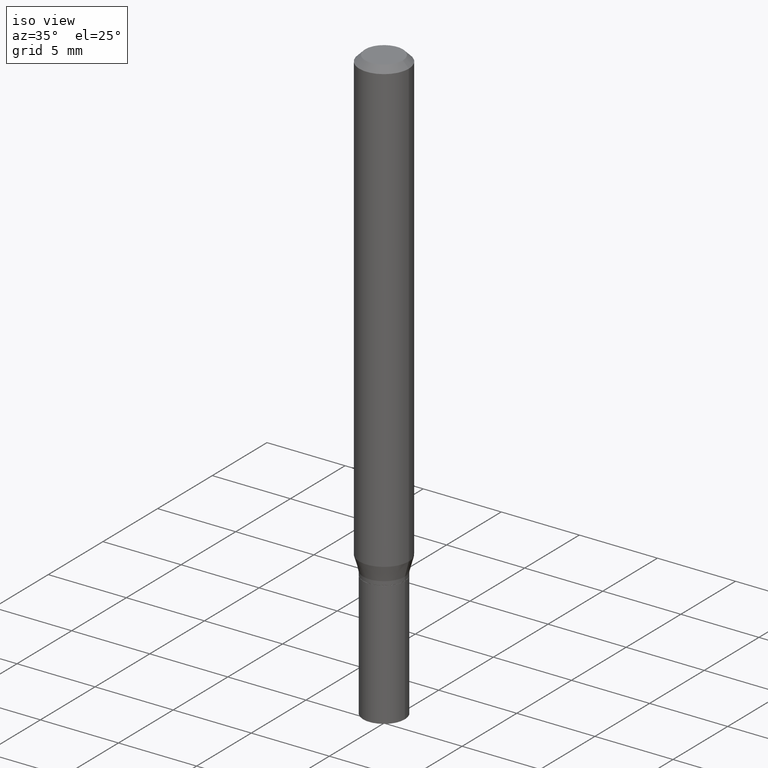
[diagram: clean part render]
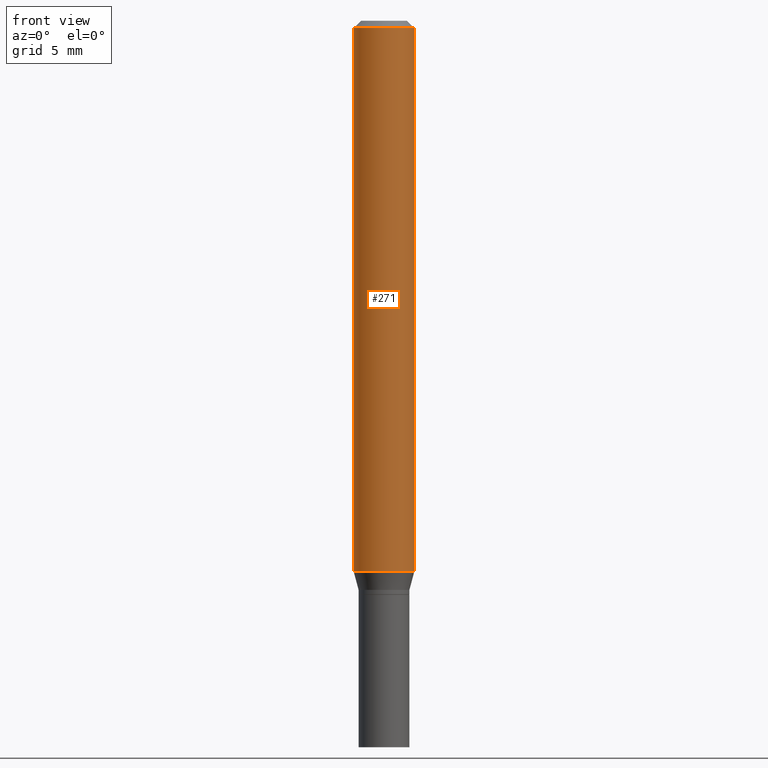
[diagram: tour spotlight — one face highlighted and labeled with its STEP entity id]
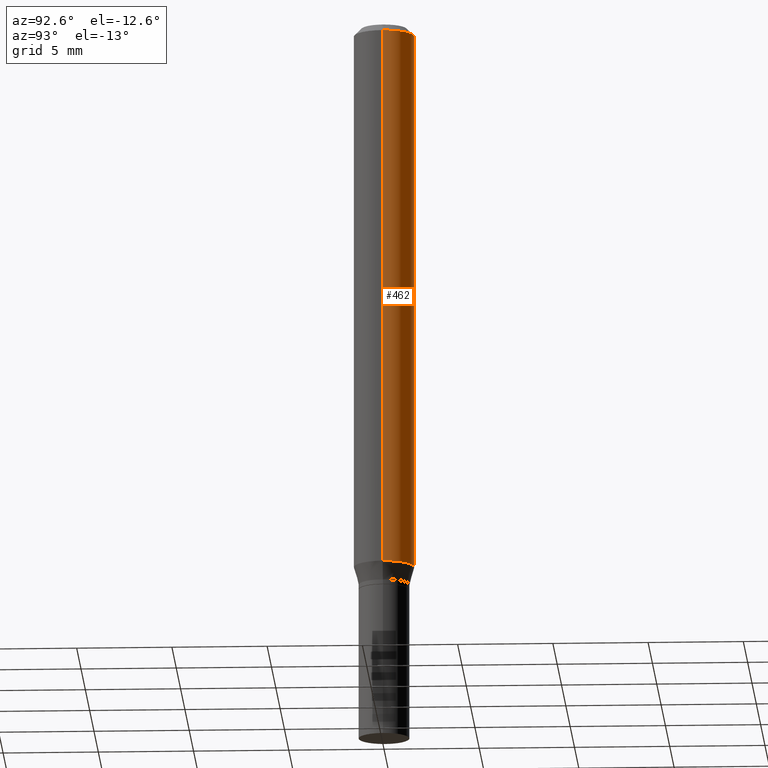
[diagram: tour spotlight — one face highlighted and labeled with its STEP entity id]
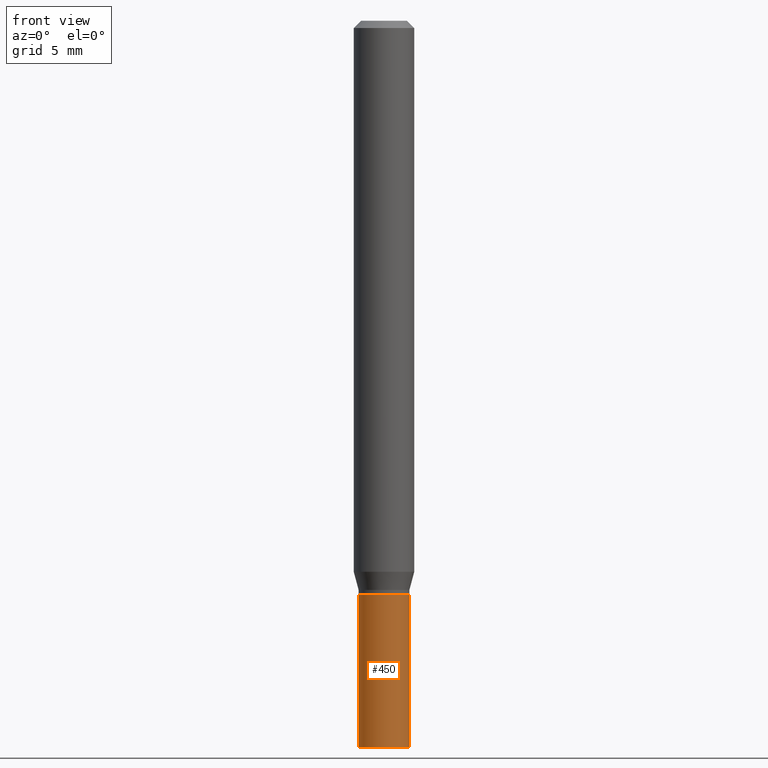
[diagram: tour spotlight — one face highlighted and labeled with its STEP entity id]
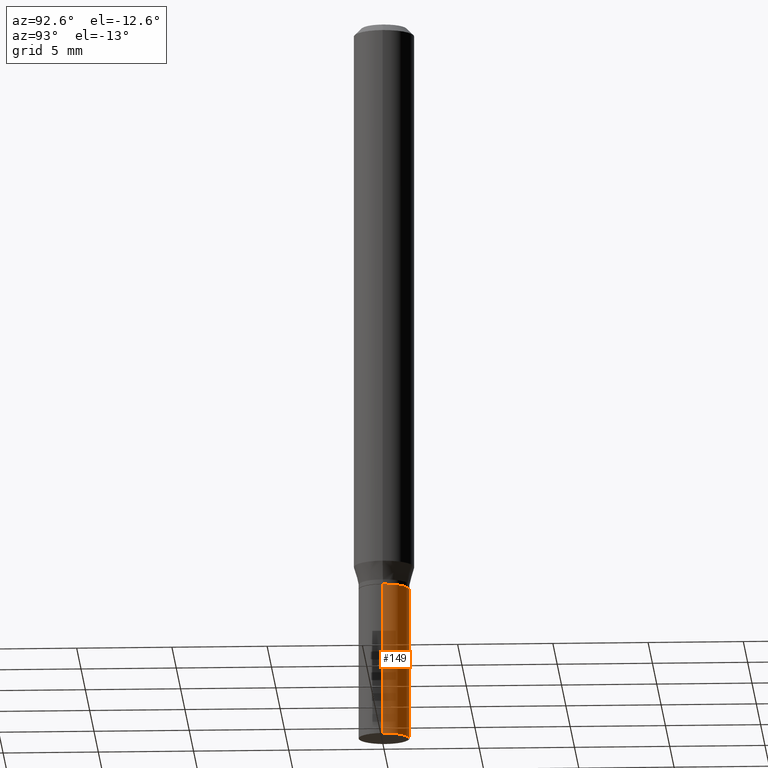
[diagram: tour spotlight — one face highlighted and labeled with its STEP entity id]
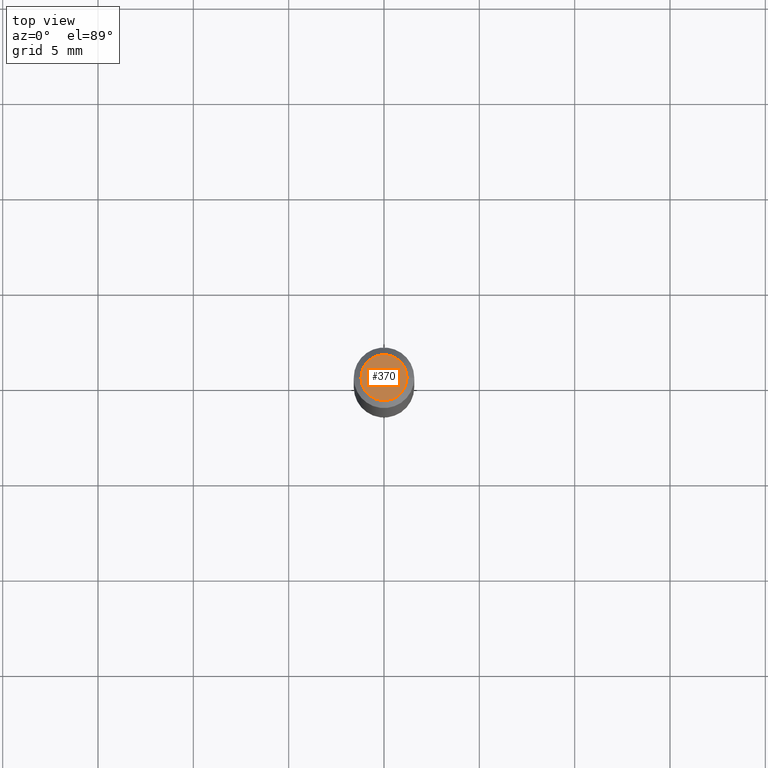
[diagram: tour spotlight — one face highlighted and labeled with its STEP entity id]
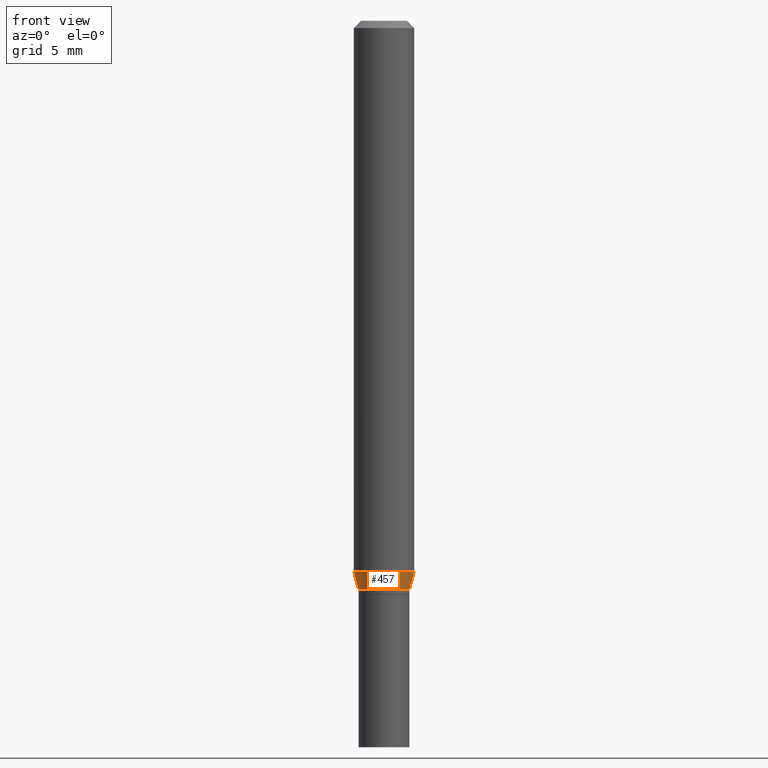
[diagram: tour spotlight — one face highlighted and labeled with its STEP entity id]
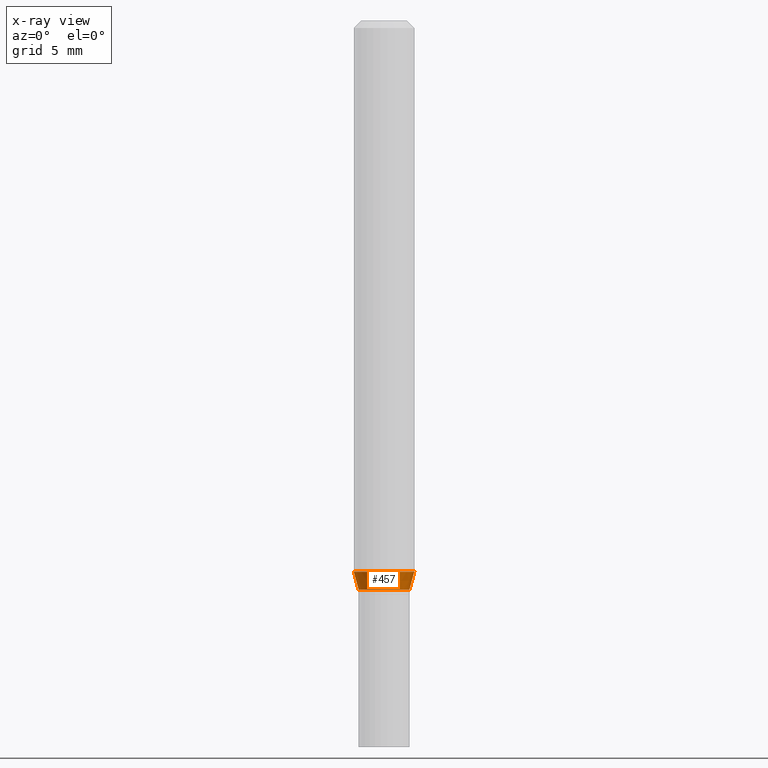
[diagram: x-ray of the same camera — body ghosted, this tour face saturated]
A machine part: a face-by-face anatomy tour. The part has 16 B-rep faces; the first image is the clean iso view, then the 6 largest visible faces are spotlighted one at a time (largest first), each with its STEP entity span.

Face 1 — front view, entity #271. In plain terms, the highlighted cylindrical surface (edge-blend (fillet) strip) has radius 1.5875 mm, axis along (-0, 0, 1).
Definition (entity closure, byte-faithful):
#20 = DIRECTION ( 'NONE',  ( -2.445468806185136877E-29, 3.491481338843145188E-15, 1.000000000000000000 ) ) ;
#22 = DIRECTION ( 'NONE',  ( 1.000000000000000000, -6.982962677686266711E-15, 0.000000000000000000 ) ) ;
#23 = ORIENTED_EDGE ( 'NONE', *, *, #77, .F. ) ;
#54 = CARTESIAN_POINT ( 'NONE',  ( -0.06250000000000000000, -1.568190258010403558E-15, -0.01499999999999999944 ) ) ;
#55 = DIRECTION ( 'NONE',  ( -2.445468806185136877E-29, 3.491481338843145188E-15, 1.000000000000000000 ) ) ;
#61 = LINE ( 'NONE', #339, #341 ) ;
#77 = EDGE_CURVE ( 'NONE', #247, #340, #435, .T. ) ;
#95 = DIRECTION ( 'NONE',  ( 1.000000000000000000, -6.982962677686270655E-15, 0.000000000000000000 ) ) ;
#106 = CARTESIAN_POINT ( 'NONE',  ( 0.06250000000000000000, -4.408621882993677332E-15, -1.137679491924311614 ) ) ;
#118 = CARTESIAN_POINT ( 'NONE',  ( 0.06250000000000000000, -4.364351673553916694E-16, 3.047610484872459871E-30 ) ) ;
#138 = VERTEX_POINT ( 'NONE', #106 ) ;
#144 = CARTESIAN_POINT ( 'NONE',  ( 3.668203209277705088E-31, -5.237222008264718399E-17, -0.01499999999999999944 ) ) ;
#150 = FACE_OUTER_BOUND ( 'NONE', #263, .T. ) ;
#172 = CARTESIAN_POINT ( 'NONE',  ( -0.06250000000000000000, -3.528097505788222652E-15, -1.137679491924311614 ) ) ;
#178 = EDGE_CURVE ( 'NONE', #138, #340, #189, .T. ) ;
#189 = LINE ( 'NONE', #118, #395 ) ;
#195 = ORIENTED_EDGE ( 'NONE', *, *, #413, .F. ) ;
#219 = VERTEX_POINT ( 'NONE', #172 ) ;
#247 = VERTEX_POINT ( 'NONE', #54 ) ;
#248 = ORIENTED_EDGE ( 'NONE', *, *, #178, .T. ) ;
#263 = EDGE_LOOP ( 'NONE', ( #195, #394, #248, #23 ) ) ;
#270 = AXIS2_PLACEMENT_3D ( 'NONE', #144, #294, #22 ) ;
#271 = ADVANCED_FACE ( 'NONE', ( #150 ), #447, .T. ) ;
#272 = AXIS2_PLACEMENT_3D ( 'NONE', #304, #439, #403 ) ;
#294 = DIRECTION ( 'NONE',  ( -2.445468806185136597E-29, 3.491481338843145583E-15, 1.000000000000000000 ) ) ;
#304 = CARTESIAN_POINT ( 'NONE',  ( 0.000000000000000000, 0.000000000000000000, 0.000000000000000000 ) ) ;
#317 = CARTESIAN_POINT ( 'NONE',  ( 2.782159708937459233E-29, -3.972186715638284874E-15, -1.137679491924311614 ) ) ;
#339 = CARTESIAN_POINT ( 'NONE',  ( -0.06250000000000000000, 4.440892098500626162E-16, -3.074334431409316114E-30 ) ) ;
#340 = VERTEX_POINT ( 'NONE', #409 ) ;
#341 = VECTOR ( 'NONE', #20, 39.37007874015748143 ) ;
#355 = AXIS2_PLACEMENT_3D ( 'NONE', #317, #383, #95 ) ;
#379 = CIRCLE ( 'NONE', #355, 0.06250000000000000000 ) ;
#383 = DIRECTION ( 'NONE',  ( -2.445468806185136597E-29, 3.491481338843145583E-15, 1.000000000000000000 ) ) ;
#394 = ORIENTED_EDGE ( 'NONE', *, *, #424, .T. ) ;
#395 = VECTOR ( 'NONE', #55, 39.37007874015748143 ) ;
#403 = DIRECTION ( 'NONE',  ( 1.000000000000000000, -6.982962677686266711E-15, 4.876176775795935793E-29 ) ) ;
#409 = CARTESIAN_POINT ( 'NONE',  ( 0.06250000000000000000, -4.888073874380388472E-16, -0.01499999999999999944 ) ) ;
#413 = EDGE_CURVE ( 'NONE', #219, #247, #61, .T. ) ;
#424 = EDGE_CURVE ( 'NONE', #219, #138, #379, .T. ) ;
#435 = CIRCLE ( 'NONE', #270, 0.06250000000000000000 ) ;
#439 = DIRECTION ( 'NONE',  ( -2.445468806185136597E-29, 3.491481338843145583E-15, 1.000000000000000000 ) ) ;
#447 = CYLINDRICAL_SURFACE ( 'NONE', #272, 0.06250000000000000000 ) ;

Face 2 — auxiliary view, entity #462. In plain terms, the highlighted cylindrical surface (edge-blend (fillet) strip) has radius 1.5875 mm, axis along (-0, 0, 1).
Definition (entity closure, byte-faithful):
#1 = CARTESIAN_POINT ( 'NONE',  ( 3.668203209277705088E-31, -5.237222008264718399E-17, -0.01499999999999999944 ) ) ;
#15 = CARTESIAN_POINT ( 'NONE',  ( 2.782159708937459233E-29, -3.972186715638284874E-15, -1.137679491924311614 ) ) ;
#20 = DIRECTION ( 'NONE',  ( -2.445468806185136877E-29, 3.491481338843145188E-15, 1.000000000000000000 ) ) ;
#24 = EDGE_CURVE ( 'NONE', #138, #219, #378, .T. ) ;
#33 = AXIS2_PLACEMENT_3D ( 'NONE', #1, #258, #364 ) ;
#54 = CARTESIAN_POINT ( 'NONE',  ( -0.06250000000000000000, -1.568190258010403558E-15, -0.01499999999999999944 ) ) ;
#55 = DIRECTION ( 'NONE',  ( -2.445468806185136877E-29, 3.491481338843145188E-15, 1.000000000000000000 ) ) ;
#61 = LINE ( 'NONE', #339, #341 ) ;
#106 = CARTESIAN_POINT ( 'NONE',  ( 0.06250000000000000000, -4.408621882993677332E-15, -1.137679491924311614 ) ) ;
#118 = CARTESIAN_POINT ( 'NONE',  ( 0.06250000000000000000, -4.364351673553916694E-16, 3.047610484872459871E-30 ) ) ;
#129 = DIRECTION ( 'NONE',  ( -2.445468806185136597E-29, 3.491481338843145583E-15, 1.000000000000000000 ) ) ;
#138 = VERTEX_POINT ( 'NONE', #106 ) ;
#165 = CIRCLE ( 'NONE', #33, 0.06250000000000000000 ) ;
#172 = CARTESIAN_POINT ( 'NONE',  ( -0.06250000000000000000, -3.528097505788222652E-15, -1.137679491924311614 ) ) ;
#175 = ORIENTED_EDGE ( 'NONE', *, *, #178, .F. ) ;
#178 = EDGE_CURVE ( 'NONE', #138, #340, #189, .T. ) ;
#189 = LINE ( 'NONE', #118, #395 ) ;
#219 = VERTEX_POINT ( 'NONE', #172 ) ;
#222 = ORIENTED_EDGE ( 'NONE', *, *, #413, .T. ) ;
#224 = ORIENTED_EDGE ( 'NONE', *, *, #241, .F. ) ;
#241 = EDGE_CURVE ( 'NONE', #340, #247, #165, .T. ) ;
#242 = ORIENTED_EDGE ( 'NONE', *, *, #24, .T. ) ;
#247 = VERTEX_POINT ( 'NONE', #54 ) ;
#254 = EDGE_LOOP ( 'NONE', ( #242, #222, #224, #175 ) ) ;
#258 = DIRECTION ( 'NONE',  ( -2.445468806185136597E-29, 3.491481338843145583E-15, 1.000000000000000000 ) ) ;
#306 = DIRECTION ( 'NONE',  ( -2.445468806185136597E-29, 3.491481338843145583E-15, 1.000000000000000000 ) ) ;
#339 = CARTESIAN_POINT ( 'NONE',  ( -0.06250000000000000000, 4.440892098500626162E-16, -3.074334431409316114E-30 ) ) ;
#340 = VERTEX_POINT ( 'NONE', #409 ) ;
#341 = VECTOR ( 'NONE', #20, 39.37007874015748143 ) ;
#342 = AXIS2_PLACEMENT_3D ( 'NONE', #377, #129, #420 ) ;
#364 = DIRECTION ( 'NONE',  ( 1.000000000000000000, -6.982962677686266711E-15, 0.000000000000000000 ) ) ;
#377 = CARTESIAN_POINT ( 'NONE',  ( 0.000000000000000000, 0.000000000000000000, 0.000000000000000000 ) ) ;
#378 = CIRCLE ( 'NONE', #405, 0.06250000000000000000 ) ;
#395 = VECTOR ( 'NONE', #55, 39.37007874015748143 ) ;
#405 = AXIS2_PLACEMENT_3D ( 'NONE', #15, #306, #418 ) ;
#409 = CARTESIAN_POINT ( 'NONE',  ( 0.06250000000000000000, -4.888073874380388472E-16, -0.01499999999999999944 ) ) ;
#413 = EDGE_CURVE ( 'NONE', #219, #247, #61, .T. ) ;
#418 = DIRECTION ( 'NONE',  ( 1.000000000000000000, -6.982962677686270655E-15, 0.000000000000000000 ) ) ;
#419 = CYLINDRICAL_SURFACE ( 'NONE', #342, 0.06250000000000000000 ) ;
#420 = DIRECTION ( 'NONE',  ( 1.000000000000000000, -6.982962677686266711E-15, 4.876176775795935793E-29 ) ) ;
#453 = FACE_OUTER_BOUND ( 'NONE', #254, .T. ) ;
#462 = ADVANCED_FACE ( 'NONE', ( #453 ), #419, .T. ) ;

Face 3 — front view, entity #450. In plain terms, the highlighted cylindrical surface (edge-blend (fillet) strip) has radius 1.3335 mm, axis along (-0, 0, 1).
Definition (entity closure, byte-faithful):
#39 = EDGE_CURVE ( 'NONE', #205, #180, #160, .T. ) ;
#57 = DIRECTION ( 'NONE',  ( -2.445468806185136877E-29, 3.491481338843145188E-15, 1.000000000000000000 ) ) ;
#65 = VECTOR ( 'NONE', #57, 39.37007874015748143 ) ;
#66 = AXIS2_PLACEMENT_3D ( 'NONE', #380, #240, #125 ) ;
#73 = CARTESIAN_POINT ( 'NONE',  ( -0.05249999999999999806, -4.314278761122870719E-15, -1.500000000000000222 ) ) ;
#82 = DIRECTION ( 'NONE',  ( 1.000000000000000000, -6.982962677686268288E-15, 0.000000000000000000 ) ) ;
#90 = LINE ( 'NONE', #267, #65 ) ;
#91 = CARTESIAN_POINT ( 'NONE',  ( -0.05249999999999999806, 3.730349362740525838E-16, -2.582440922383825311E-30 ) ) ;
#94 = EDGE_CURVE ( 'NONE', #318, #168, #90, .T. ) ;
#103 = ORIENTED_EDGE ( 'NONE', *, *, #94, .T. ) ;
#119 = VECTOR ( 'NONE', #231, 39.37007874015748143 ) ;
#120 = AXIS2_PLACEMENT_3D ( 'NONE', #229, #122, #232 ) ;
#122 = DIRECTION ( 'NONE',  ( -2.445468806185136597E-29, 3.491481338843145583E-15, 1.000000000000000000 ) ) ;
#125 = DIRECTION ( 'NONE',  ( 1.000000000000000000, -6.982962677686268288E-15, 0.000000000000000000 ) ) ;
#151 = CIRCLE ( 'NONE', #66, 0.05249999999999999806 ) ;
#157 = DIRECTION ( 'NONE',  ( -2.445468806185136597E-29, 3.491481338843145583E-15, 1.000000000000000000 ) ) ;
#160 = LINE ( 'NONE', #91, #119 ) ;
#168 = VERTEX_POINT ( 'NONE', #201 ) ;
#180 = VERTEX_POINT ( 'NONE', #192 ) ;
#192 = CARTESIAN_POINT ( 'NONE',  ( -0.05249999999999999806, -4.314278761122870719E-15, -1.185000000000000275 ) ) ;
#201 = CARTESIAN_POINT ( 'NONE',  ( 0.05249999999999999806, -4.504010927107657490E-15, -1.185000000000000275 ) ) ;
#205 = VERTEX_POINT ( 'NONE', #73 ) ;
#216 = EDGE_CURVE ( 'NONE', #205, #318, #244, .T. ) ;
#229 = CARTESIAN_POINT ( 'NONE',  ( 0.000000000000000000, 0.000000000000000000, 0.000000000000000000 ) ) ;
#231 = DIRECTION ( 'NONE',  ( -2.445468806185136877E-29, 3.491481338843145188E-15, 1.000000000000000000 ) ) ;
#232 = DIRECTION ( 'NONE',  ( 1.000000000000000000, -6.982962677686265922E-15, 4.876176775795935232E-29 ) ) ;
#240 = DIRECTION ( 'NONE',  ( -2.445468806185136597E-29, 3.491481338843145583E-15, 1.000000000000000000 ) ) ;
#244 = CIRCLE ( 'NONE', #315, 0.05249999999999999806 ) ;
#259 = CARTESIAN_POINT ( 'NONE',  ( 0.05249999999999999806, -5.603827548843247337E-15, -1.500000000000000222 ) ) ;
#262 = EDGE_LOOP ( 'NONE', ( #269, #365, #103, #286 ) ) ;
#267 = CARTESIAN_POINT ( 'NONE',  ( 0.05249999999999999806, -3.666055405785289629E-16, 2.559992807292866011E-30 ) ) ;
#269 = ORIENTED_EDGE ( 'NONE', *, *, #39, .F. ) ;
#279 = CYLINDRICAL_SURFACE ( 'NONE', #120, 0.05249999999999999806 ) ;
#286 = ORIENTED_EDGE ( 'NONE', *, *, #432, .F. ) ;
#295 = CARTESIAN_POINT ( 'NONE',  ( 3.668203209277704895E-29, -5.237222008264718177E-15, -1.500000000000000222 ) ) ;
#315 = AXIS2_PLACEMENT_3D ( 'NONE', #295, #157, #82 ) ;
#316 = FACE_OUTER_BOUND ( 'NONE', #262, .T. ) ;
#318 = VERTEX_POINT ( 'NONE', #259 ) ;
#365 = ORIENTED_EDGE ( 'NONE', *, *, #216, .T. ) ;
#380 = CARTESIAN_POINT ( 'NONE',  ( 2.897880535329387383E-29, -4.137405386529128330E-15, -1.185000000000000275 ) ) ;
#432 = EDGE_CURVE ( 'NONE', #180, #168, #151, .T. ) ;
#450 = ADVANCED_FACE ( 'NONE', ( #316 ), #279, .T. ) ;

Face 4 — auxiliary view, entity #149. In plain terms, the highlighted cylindrical surface (edge-blend (fillet) strip) has radius 1.3335 mm, axis along (-0, 0, 1).
Definition (entity closure, byte-faithful):
#12 = CARTESIAN_POINT ( 'NONE',  ( 0.000000000000000000, 0.000000000000000000, 0.000000000000000000 ) ) ;
#17 = CIRCLE ( 'NONE', #225, 0.05249999999999999806 ) ;
#39 = EDGE_CURVE ( 'NONE', #205, #180, #160, .T. ) ;
#57 = DIRECTION ( 'NONE',  ( -2.445468806185136877E-29, 3.491481338843145188E-15, 1.000000000000000000 ) ) ;
#62 = ORIENTED_EDGE ( 'NONE', *, *, #296, .F. ) ;
#63 = EDGE_CURVE ( 'NONE', #318, #205, #197, .T. ) ;
#65 = VECTOR ( 'NONE', #57, 39.37007874015748143 ) ;
#73 = CARTESIAN_POINT ( 'NONE',  ( -0.05249999999999999806, -4.314278761122870719E-15, -1.500000000000000222 ) ) ;
#88 = DIRECTION ( 'NONE',  ( -2.445468806185136597E-29, 3.491481338843145583E-15, 1.000000000000000000 ) ) ;
#90 = LINE ( 'NONE', #267, #65 ) ;
#91 = CARTESIAN_POINT ( 'NONE',  ( -0.05249999999999999806, 3.730349362740525838E-16, -2.582440922383825311E-30 ) ) ;
#94 = EDGE_CURVE ( 'NONE', #318, #168, #90, .T. ) ;
#111 = CARTESIAN_POINT ( 'NONE',  ( 2.897880535329387383E-29, -4.137405386529128330E-15, -1.185000000000000275 ) ) ;
#117 = DIRECTION ( 'NONE',  ( 1.000000000000000000, -6.982962677686268288E-15, 0.000000000000000000 ) ) ;
#119 = VECTOR ( 'NONE', #231, 39.37007874015748143 ) ;
#149 = ADVANCED_FACE ( 'NONE', ( #366 ), #443, .T. ) ;
#160 = LINE ( 'NONE', #91, #119 ) ;
#168 = VERTEX_POINT ( 'NONE', #201 ) ;
#176 = DIRECTION ( 'NONE',  ( 1.000000000000000000, -6.982962677686268288E-15, 0.000000000000000000 ) ) ;
#180 = VERTEX_POINT ( 'NONE', #192 ) ;
#192 = CARTESIAN_POINT ( 'NONE',  ( -0.05249999999999999806, -4.314278761122870719E-15, -1.185000000000000275 ) ) ;
#197 = CIRCLE ( 'NONE', #314, 0.05249999999999999806 ) ;
#201 = CARTESIAN_POINT ( 'NONE',  ( 0.05249999999999999806, -4.504010927107657490E-15, -1.185000000000000275 ) ) ;
#205 = VERTEX_POINT ( 'NONE', #73 ) ;
#213 = CARTESIAN_POINT ( 'NONE',  ( 3.668203209277704895E-29, -5.237222008264718177E-15, -1.500000000000000222 ) ) ;
#225 = AXIS2_PLACEMENT_3D ( 'NONE', #111, #398, #117 ) ;
#228 = DIRECTION ( 'NONE',  ( 1.000000000000000000, -6.982962677686265922E-15, 4.876176775795935232E-29 ) ) ;
#231 = DIRECTION ( 'NONE',  ( -2.445468806185136877E-29, 3.491481338843145188E-15, 1.000000000000000000 ) ) ;
#259 = CARTESIAN_POINT ( 'NONE',  ( 0.05249999999999999806, -5.603827548843247337E-15, -1.500000000000000222 ) ) ;
#267 = CARTESIAN_POINT ( 'NONE',  ( 0.05249999999999999806, -3.666055405785289629E-16, 2.559992807292866011E-30 ) ) ;
#284 = AXIS2_PLACEMENT_3D ( 'NONE', #12, #88, #228 ) ;
#296 = EDGE_CURVE ( 'NONE', #168, #180, #17, .T. ) ;
#314 = AXIS2_PLACEMENT_3D ( 'NONE', #213, #330, #176 ) ;
#318 = VERTEX_POINT ( 'NONE', #259 ) ;
#330 = DIRECTION ( 'NONE',  ( -2.445468806185136597E-29, 3.491481338843145583E-15, 1.000000000000000000 ) ) ;
#338 = ORIENTED_EDGE ( 'NONE', *, *, #94, .F. ) ;
#366 = FACE_OUTER_BOUND ( 'NONE', #374, .T. ) ;
#374 = EDGE_LOOP ( 'NONE', ( #411, #464, #62, #338 ) ) ;
#398 = DIRECTION ( 'NONE',  ( -2.445468806185136597E-29, 3.491481338843145583E-15, 1.000000000000000000 ) ) ;
#411 = ORIENTED_EDGE ( 'NONE', *, *, #63, .T. ) ;
#443 = CYLINDRICAL_SURFACE ( 'NONE', #284, 0.05249999999999999806 ) ;
#464 = ORIENTED_EDGE ( 'NONE', *, *, #39, .T. ) ;

Face 5 — top view, entity #370. In plain terms, the highlighted planar face has unit normal (0, -0, -1).
Definition (entity closure, byte-faithful):
#16 = CARTESIAN_POINT ( 'NONE',  ( 0.04749999999999999362, -4.035134999187581581E-16, -1.989643822619502098E-16 ) ) ;
#50 = AXIS2_PLACEMENT_3D ( 'NONE', #253, #80, #191 ) ;
#58 = PLANE ( 'NONE',  #202 ) ;
#79 = DIRECTION ( 'NONE',  ( -2.445468806185136597E-29, 3.491481338843145583E-15, 1.000000000000000000 ) ) ;
#80 = DIRECTION ( 'NONE',  ( -2.445468806185136597E-29, 3.491481338843145583E-15, 1.000000000000000000 ) ) ;
#132 = CARTESIAN_POINT ( 'NONE',  ( 3.316907271900976096E-16, 0.04749999999999999362, -2.653275547260257586E-16 ) ) ;
#134 = EDGE_CURVE ( 'NONE', #402, #460, #440, .T. ) ;
#142 = EDGE_LOOP ( 'NONE', ( #308, #446 ) ) ;
#153 = CIRCLE ( 'NONE', #50, 0.04749999999999999362 ) ;
#191 = DIRECTION ( 'NONE',  ( 1.000000000000000000, -6.982962677686267499E-15, 4.852736867747366768E-29 ) ) ;
#202 = AXIS2_PLACEMENT_3D ( 'NONE', #132, #343, #351 ) ;
#253 = CARTESIAN_POINT ( 'NONE',  ( 4.865611903635008365E-45, -6.946804277620623666E-31, -1.989643822619527736E-16 ) ) ;
#275 = CARTESIAN_POINT ( 'NONE',  ( -0.04749999999999999362, 3.578768372314206562E-16, -1.989643822619551895E-16 ) ) ;
#282 = EDGE_CURVE ( 'NONE', #460, #402, #153, .T. ) ;
#308 = ORIENTED_EDGE ( 'NONE', *, *, #134, .T. ) ;
#311 = FACE_OUTER_BOUND ( 'NONE', #142, .T. ) ;
#321 = DIRECTION ( 'NONE',  ( 1.000000000000000000, -6.982962677686267499E-15, 4.852736867747366768E-29 ) ) ;
#343 = DIRECTION ( 'NONE',  ( 2.438088387897960049E-29, -3.491481338843145188E-15, -1.000000000000000000 ) ) ;
#351 = DIRECTION ( 'NONE',  ( -1.000000000000000000, 6.982962677686265922E-15, -4.876176775795935793E-29 ) ) ;
#356 = CARTESIAN_POINT ( 'NONE',  ( 4.865611903635008365E-45, -6.946804277620623666E-31, -1.989643822619527736E-16 ) ) ;
#370 = ADVANCED_FACE ( 'NONE', ( #311 ), #58, .F. ) ;
#402 = VERTEX_POINT ( 'NONE', #275 ) ;
#440 = CIRCLE ( 'NONE', #463, 0.04749999999999999362 ) ;
#446 = ORIENTED_EDGE ( 'NONE', *, *, #282, .T. ) ;
#460 = VERTEX_POINT ( 'NONE', #16 ) ;
#463 = AXIS2_PLACEMENT_3D ( 'NONE', #356, #79, #321 ) ;

Face 6 — front view, entity #457. An x-ray twin of the same camera follows (body ghosted, this face saturated) — the face is partly hidden behind the body. In plain terms, the highlighted conical surface has half-angle 15 deg.
Definition (entity closure, byte-faithful):
#6 = AXIS2_PLACEMENT_3D ( 'NONE', #274, #375, #200 ) ;
#9 = VECTOR ( 'NONE', #301, 39.37007874015748854 ) ;
#43 = CARTESIAN_POINT ( 'NONE',  ( 2.873425847267535838E-29, -4.102490573140696681E-15, -1.175000000000000266 ) ) ;
#48 = EDGE_CURVE ( 'NONE', #126, #219, #461, .T. ) ;
#64 = FACE_OUTER_BOUND ( 'NONE', #333, .T. ) ;
#69 = ORIENTED_EDGE ( 'NONE', *, *, #424, .F. ) ;
#75 = DIRECTION ( 'NONE',  ( -0.2588190451025211836, 5.211531920934547886E-15, 0.9659258262890679791 ) ) ;
#81 = ORIENTED_EDGE ( 'NONE', *, *, #223, .T. ) ;
#83 = CONICAL_SURFACE ( 'NONE', #6, 0.05250000000000004663, 0.2617993877991499074 ) ;
#95 = DIRECTION ( 'NONE',  ( 1.000000000000000000, -6.982962677686270655E-15, 0.000000000000000000 ) ) ;
#106 = CARTESIAN_POINT ( 'NONE',  ( 0.06250000000000000000, -4.408621882993677332E-15, -1.137679491924311614 ) ) ;
#126 = VERTEX_POINT ( 'NONE', #255 ) ;
#138 = VERTEX_POINT ( 'NONE', #106 ) ;
#169 = VECTOR ( 'NONE', #75, 39.37007874015748854 ) ;
#170 = CIRCLE ( 'NONE', #454, 0.05250000000000004663 ) ;
#172 = CARTESIAN_POINT ( 'NONE',  ( -0.06250000000000000000, -3.528097505788222652E-15, -1.137679491924311614 ) ) ;
#200 = DIRECTION ( 'NONE',  ( 1.000000000000000000, -6.982962677686261977E-15, 0.000000000000000000 ) ) ;
#219 = VERTEX_POINT ( 'NONE', #172 ) ;
#223 = EDGE_CURVE ( 'NONE', #335, #138, #328, .T. ) ;
#227 = DIRECTION ( 'NONE',  ( -2.445468806185136597E-29, 3.491481338843145583E-15, 1.000000000000000000 ) ) ;
#238 = ORIENTED_EDGE ( 'NONE', *, *, #252, .T. ) ;
#239 = CARTESIAN_POINT ( 'NONE',  ( -0.05250000000000004663, -3.729455636866644146E-15, -1.175000000000000266 ) ) ;
#252 = EDGE_CURVE ( 'NONE', #126, #335, #170, .T. ) ;
#255 = CARTESIAN_POINT ( 'NONE',  ( -0.05250000000000004663, -3.628776571327433202E-15, -1.175000000000000266 ) ) ;
#268 = DIRECTION ( 'NONE',  ( 1.000000000000000000, -6.982962677686261977E-15, 0.000000000000000000 ) ) ;
#274 = CARTESIAN_POINT ( 'NONE',  ( 2.873425847267535838E-29, -4.102490573140696681E-15, -1.175000000000000266 ) ) ;
#301 = DIRECTION ( 'NONE',  ( 0.2588190451025211836, 1.565188264969622559E-15, 0.9659258262890679791 ) ) ;
#317 = CARTESIAN_POINT ( 'NONE',  ( 2.782159708937459233E-29, -3.972186715638284874E-15, -1.137679491924311614 ) ) ;
#322 = CARTESIAN_POINT ( 'NONE',  ( 0.05250000000000004663, -4.469096113719225841E-15, -1.175000000000000266 ) ) ;
#328 = LINE ( 'NONE', #322, #9 ) ;
#333 = EDGE_LOOP ( 'NONE', ( #456, #238, #81, #69 ) ) ;
#335 = VERTEX_POINT ( 'NONE', #371 ) ;
#355 = AXIS2_PLACEMENT_3D ( 'NONE', #317, #383, #95 ) ;
#371 = CARTESIAN_POINT ( 'NONE',  ( 0.05250000000000004663, -4.469096113719225841E-15, -1.175000000000000266 ) ) ;
#375 = DIRECTION ( 'NONE',  ( -2.445468806185136597E-29, 3.491481338843145583E-15, 1.000000000000000000 ) ) ;
#379 = CIRCLE ( 'NONE', #355, 0.06250000000000000000 ) ;
#383 = DIRECTION ( 'NONE',  ( -2.445468806185136597E-29, 3.491481338843145583E-15, 1.000000000000000000 ) ) ;
#424 = EDGE_CURVE ( 'NONE', #219, #138, #379, .T. ) ;
#454 = AXIS2_PLACEMENT_3D ( 'NONE', #43, #227, #268 ) ;
#456 = ORIENTED_EDGE ( 'NONE', *, *, #48, .F. ) ;
#457 = ADVANCED_FACE ( 'NONE', ( #64 ), #83, .T. ) ;
#461 = LINE ( 'NONE', #239, #169 ) ;